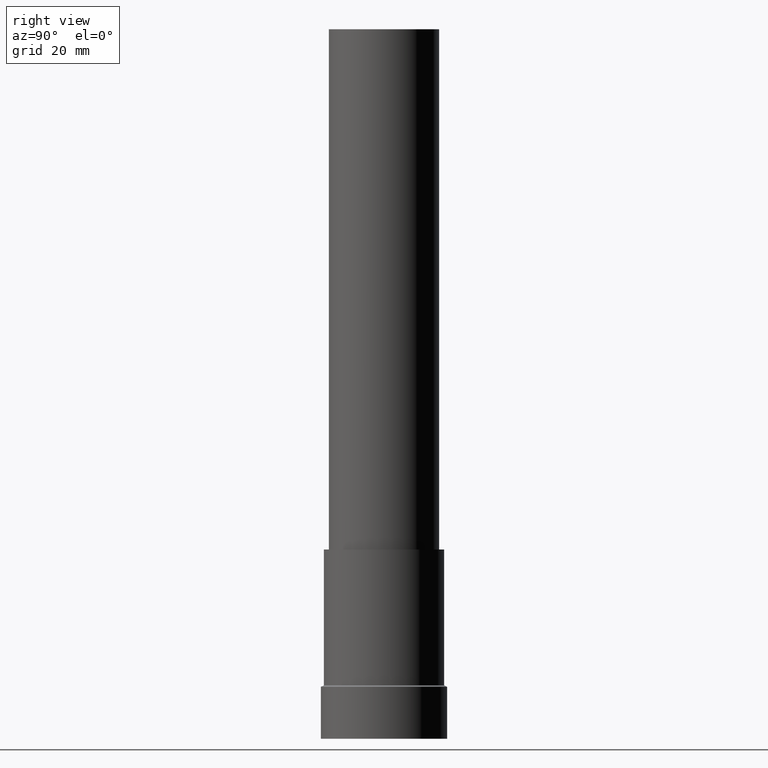
[diagram: clean part render]
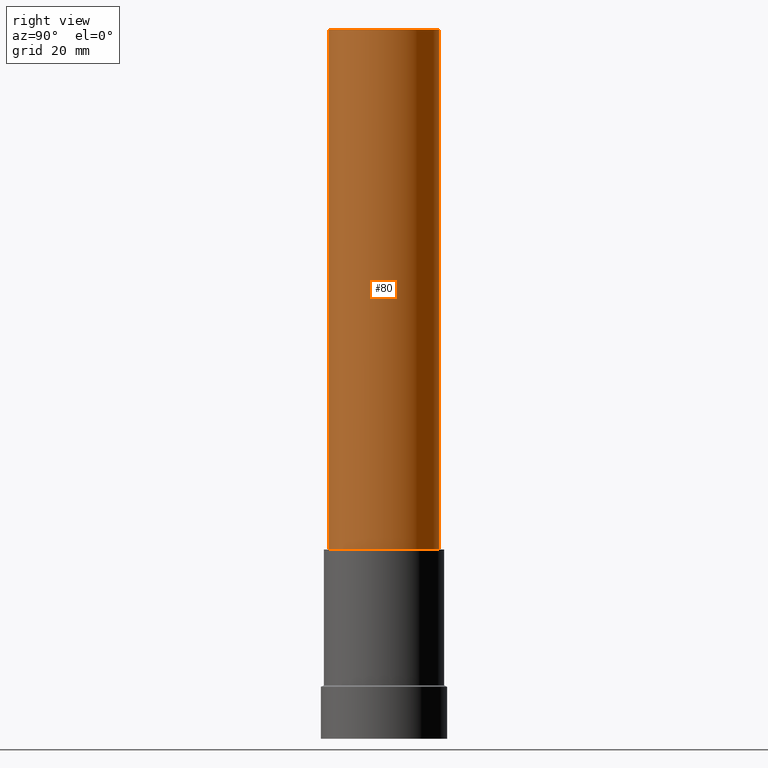
[diagram: same view with one face highlighted and labeled with its STEP entity id]
A machine part, right view. The second image highlights one B-rep face of the part: STEP entity #80.
In plain terms, the highlighted cylindrical surface (bore or boss wall) has radius 14 mm, axis along (0, 0, -1).
Its self-contained STEP definition (entity closure, byte-faithful):
#80=ADVANCED_FACE('',(#97,#98),#99,.T.);
#97=FACE_BOUND('',#116,.T.);
#98=FACE_BOUND('',#117,.T.);
#99=CYLINDRICAL_SURFACE('',#118,14.0000000000002);
#116=EDGE_LOOP('',(#145));
#117=EDGE_LOOP('',(#146));
#118=AXIS2_PLACEMENT_3D('',#147,#148,#149);
#145=ORIENTED_EDGE('',*,*,#159,.F.);
#146=ORIENTED_EDGE('',*,*,#158,.T.);
#147=CARTESIAN_POINT('',(-6.98048675513933E-015,-8.23651766947626E-018,113.99999999999));
#148=DIRECTION('',(6.12323399573676E-017,7.22501549961302E-020,-1.0));
#149=DIRECTION('',(-4.83157677681989E-033,1.0,7.22501549961302E-020));
#158=EDGE_CURVE('',#168,#168,#169,.T.);
#159=EDGE_CURVE('',#170,#170,#171,.T.);
#168=VERTEX_POINT('',#180);
#169=CIRCLE('',#181,14.0000000000007);
#170=VERTEX_POINT('',#182);
#171=CIRCLE('',#183,13.9999999999998);
#180=CARTESIAN_POINT('',(-2.93915231795246E-015,14.0000000000007,47.9999999999806));
#181=AXIS2_PLACEMENT_3D('',#196,#197,#198);
#182=CARTESIAN_POINT('',(-1.10218211923262E-014,13.9999999999998,180.0));
#183=AXIS2_PLACEMENT_3D('',#199,#200,#201);
#196=CARTESIAN_POINT('',(-2.93915231795246E-015,-3.46800743977915E-018,47.9999999999806));
#197=DIRECTION('',(-6.12323399573677E-017,-7.22501549961279E-020,1.0));
#198=DIRECTION('',(-4.83157677682294E-033,1.0,7.22501549961279E-020));
#199=CARTESIAN_POINT('',(-1.10218211923262E-014,-1.30050278991734E-017,180.0));
#200=DIRECTION('',(-6.12323399573677E-017,-7.22501549961324E-020,1.0));
#201=DIRECTION('',(-4.83157677682004E-033,1.0,7.22501549961324E-020));